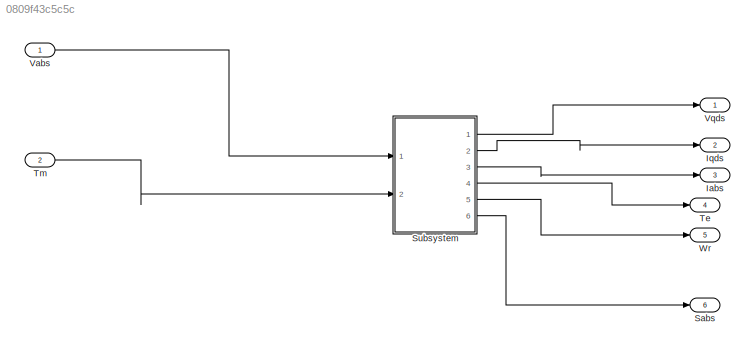
MODEL slx_0809f43c5c5c
KIND model
CONFIG AbsTol = auto
CONFIG EnableMultiTasking = off
CONFIG FixedStep = auto
CONFIG MaxStep = auto
CONFIG MinStep = auto
CONFIG RelTol = 1e-3
CONFIG SampleTimeConstraint = Unconstrained
CONFIG SolverName = VariableStepAuto
CONFIG StartTime = 0.0
CONFIG StopTime = 10.0
BLOCK [Outport] Iabs
  Port = 3
BLOCK [Outport] Iqds
  Port = 2
BLOCK [Outport] Sabs
  Port = 6
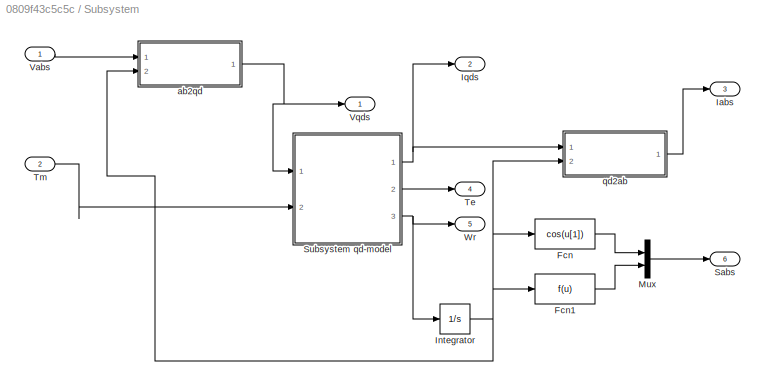
BLOCK [SubSystem] Subsystem
  Ports = [2, 6]
  RequestExecContextInheritance = off
BLOCK [Fcn] Subsystem/Fcn
  Expr = cos(u[1])
BLOCK [Fcn] Subsystem/Fcn1
BLOCK [Outport] Subsystem/Iabs
  Port = 3
BLOCK [Integrator] Subsystem/Integrator
  Ports = [1, 1]
BLOCK [Outport] Subsystem/Iqds
  Port = 2
BLOCK [Mux] Subsystem/Mux
  DisplayOption = bar
  Inputs = 2
  Ports = [2, 1]
BLOCK [Outport] Subsystem/Sabs
  Port = 6
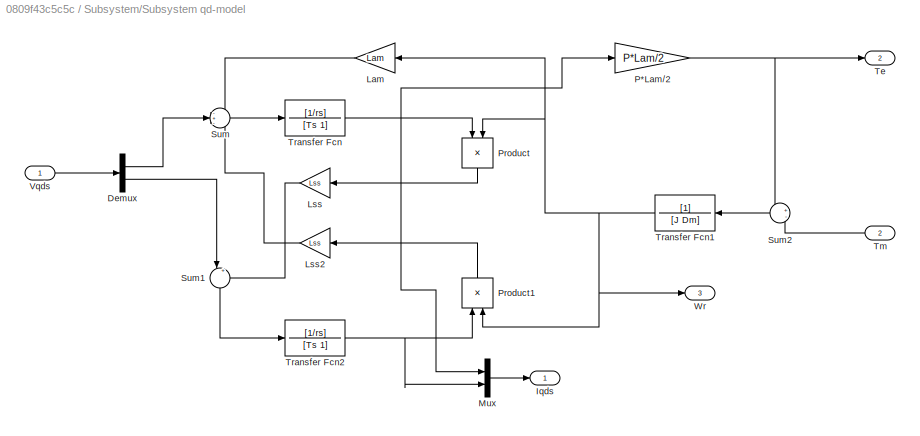
BLOCK [SubSystem] Subsystem/Subsystem qd-model
  Ports = [2, 3]
  RequestExecContextInheritance = off
BLOCK [Demux] Subsystem/Subsystem qd-model/Demux
  Outputs = 2
  Ports = [1, 2]
BLOCK [Outport] Subsystem/Subsystem qd-model/Iqds
BLOCK [Gain] Subsystem/Subsystem qd-model/Lam
  Gain = Lam
BLOCK [Gain] Subsystem/Subsystem qd-model/Lss
  Gain = Lss
BLOCK [Gain] Subsystem/Subsystem qd-model/Lss2
  Gain = Lss
BLOCK [Mux] Subsystem/Subsystem qd-model/Mux
  DisplayOption = bar
  Inputs = 2
  Ports = [2, 1]
BLOCK [Gain] Subsystem/Subsystem qd-model/P*Lam//2
  Gain = P*Lam/2
BLOCK [Product] Subsystem/Subsystem qd-model/Product
  NameLocation = left
  Ports = [2, 1]
BLOCK [Product] Subsystem/Subsystem qd-model/Product1
  NameLocation = right
  Ports = [2, 1]
BLOCK [Sum] Subsystem/Subsystem qd-model/Sum
  Inputs = -+-
  Ports = [3, 1]
BLOCK [Sum] Subsystem/Subsystem qd-model/Sum1
  Inputs = |++
  NameLocation = left
  Ports = [2, 1]
BLOCK [Sum] Subsystem/Subsystem qd-model/Sum2
  Inputs = +-
  Ports = [2, 1]
BLOCK [Outport] Subsystem/Subsystem qd-model/Te
  Port = 2
BLOCK [Inport] Subsystem/Subsystem qd-model/Tm
  Port = 2
BLOCK [TransferFcn] Subsystem/Subsystem qd-model/Transfer Fcn
  Denominator = [Ts 1]
  Numerator = [1/rs]
BLOCK [TransferFcn] Subsystem/Subsystem qd-model/Transfer Fcn1
  Denominator = [J Dm]
BLOCK [TransferFcn] Subsystem/Subsystem qd-model/Transfer Fcn2
  Denominator = [Ts 1]
  Numerator = [1/rs]
BLOCK [Inport] Subsystem/Subsystem qd-model/Vqds
BLOCK [Outport] Subsystem/Subsystem qd-model/Wr
  Port = 3
BLOCK [Outport] Subsystem/Te
  Port = 4
BLOCK [Inport] Subsystem/Tm
  Port = 2
BLOCK [Inport] Subsystem/Vabs
BLOCK [Outport] Subsystem/Vqds
BLOCK [Outport] Subsystem/Wr
  Port = 5
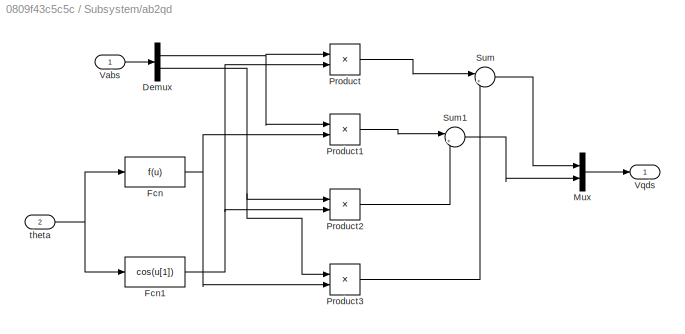
BLOCK [SubSystem] Subsystem/ab2qd
  Ports = [2, 1]
  RequestExecContextInheritance = off
BLOCK [Outport] Subsystem/ab2qd/ Vqds
BLOCK [Demux] Subsystem/ab2qd/Demux
  Outputs = 2
  Ports = [1, 2]
BLOCK [Fcn] Subsystem/ab2qd/Fcn
BLOCK [Fcn] Subsystem/ab2qd/Fcn1
  Expr = cos(u[1])
BLOCK [Mux] Subsystem/ab2qd/Mux
  DisplayOption = bar
  Inputs = 2
  Ports = [2, 1]
BLOCK [Product] Subsystem/ab2qd/Product
  Ports = [2, 1]
BLOCK [Product] Subsystem/ab2qd/Product1
  Ports = [2, 1]
BLOCK [Product] Subsystem/ab2qd/Product2
  Ports = [2, 1]
BLOCK [Product] Subsystem/ab2qd/Product3
  Ports = [2, 1]
BLOCK [Sum] Subsystem/ab2qd/Sum
  Inputs = |++
  Ports = [2, 1]
BLOCK [Sum] Subsystem/ab2qd/Sum1
  Inputs = |+-
  Ports = [2, 1]
BLOCK [Inport] Subsystem/ab2qd/Vabs
BLOCK [Inport] Subsystem/ab2qd/theta
  Port = 2
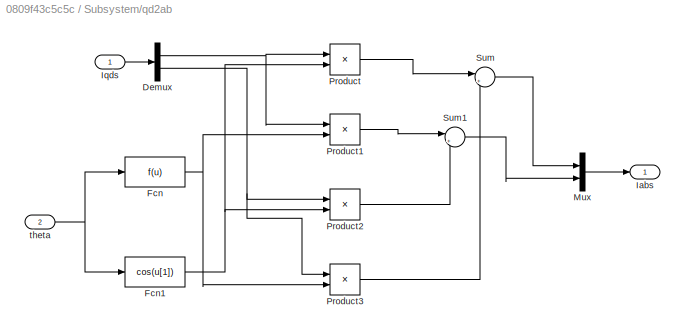
BLOCK [SubSystem] Subsystem/qd2ab
  Ports = [2, 1]
  RequestExecContextInheritance = off
BLOCK [Outport] Subsystem/qd2ab/ Iabs
BLOCK [Demux] Subsystem/qd2ab/Demux
  Outputs = 2
  Ports = [1, 2]
BLOCK [Fcn] Subsystem/qd2ab/Fcn
BLOCK [Fcn] Subsystem/qd2ab/Fcn1
  Expr = cos(u[1])
BLOCK [Inport] Subsystem/qd2ab/Iqds
BLOCK [Mux] Subsystem/qd2ab/Mux
  DisplayOption = bar
  Inputs = 2
  Ports = [2, 1]
BLOCK [Product] Subsystem/qd2ab/Product
  Ports = [2, 1]
BLOCK [Product] Subsystem/qd2ab/Product1
  Ports = [2, 1]
BLOCK [Product] Subsystem/qd2ab/Product2
  Ports = [2, 1]
BLOCK [Product] Subsystem/qd2ab/Product3
  Ports = [2, 1]
BLOCK [Sum] Subsystem/qd2ab/Sum
  Inputs = |++
  Ports = [2, 1]
BLOCK [Sum] Subsystem/qd2ab/Sum1
  Inputs = |+-
  Ports = [2, 1]
BLOCK [Inport] Subsystem/qd2ab/theta
  Port = 2
BLOCK [Outport] Te
  Port = 4
BLOCK [Inport] Tm
  Port = 2
BLOCK [Inport] Vabs
BLOCK [Outport] Vqds
BLOCK [Outport] Wr
  Port = 5
LINE Subsystem/Fcn1:1 -> Subsystem/Mux:2
LINE Subsystem/Fcn:1 -> Subsystem/Mux:1
NET Subsystem/Integrator:1 -> Subsystem/Fcn1:1, Subsystem/Fcn:1, Subsystem/ab2qd:2, Subsystem/qd2ab:2
LINE Subsystem/Mux:1 -> Subsystem/Sabs:1
LINE Subsystem/Subsystem qd-model/Demux:1 -> Subsystem/Subsystem qd-model/Sum:2
LINE Subsystem/Subsystem qd-model/Demux:2 -> Subsystem/Subsystem qd-model/Sum1:1
LINE Subsystem/Subsystem qd-model/Lam:1 -> Subsystem/Subsystem qd-model/Sum:1
LINE Subsystem/Subsystem qd-model/Lss2:1 -> Subsystem/Subsystem qd-model/Sum:3
LINE Subsystem/Subsystem qd-model/Lss:1 -> Subsystem/Subsystem qd-model/Sum1:2
LINE Subsystem/Subsystem qd-model/Mux:1 -> Subsystem/Subsystem qd-model/Iqds:1
NET Subsystem/Subsystem qd-model/P*Lam//2:1 -> Subsystem/Subsystem qd-model/Sum2:1, Subsystem/Subsystem qd-model/Te:1
LINE Subsystem/Subsystem qd-model/Product1:1 -> Subsystem/Subsystem qd-model/Lss2:1
LINE Subsystem/Subsystem qd-model/Product:1 -> Subsystem/Subsystem qd-model/Lss:1
LINE Subsystem/Subsystem qd-model/Sum1:1 -> Subsystem/Subsystem qd-model/Transfer Fcn2:1
LINE Subsystem/Subsystem qd-model/Sum2:1 -> Subsystem/Subsystem qd-model/Transfer Fcn1:1
LINE Subsystem/Subsystem qd-model/Sum:1 -> Subsystem/Subsystem qd-model/Transfer Fcn:1
LINE Subsystem/Subsystem qd-model/Tm:1 -> Subsystem/Subsystem qd-model/Sum2:2
NET Subsystem/Subsystem qd-model/Transfer Fcn1:1 -> Subsystem/Subsystem qd-model/Lam:1, Subsystem/Subsystem qd-model/Product1:2, Subsystem/Subsystem qd-model/Product:2, Subsystem/Subsystem qd-model/Wr:1
NET Subsystem/Subsystem qd-model/Transfer Fcn2:1 -> Subsystem/Subsystem qd-model/Mux:2, Subsystem/Subsystem qd-model/Product1:1
NET Subsystem/Subsystem qd-model/Transfer Fcn:1 -> Subsystem/Subsystem qd-model/Mux:1, Subsystem/Subsystem qd-model/P*Lam//2:1, Subsystem/Subsystem qd-model/Product:1
LINE Subsystem/Subsystem qd-model/Vqds:1 -> Subsystem/Subsystem qd-model/Demux:1
NET Subsystem/Subsystem qd-model:1 -> Subsystem/Iqds:1, Subsystem/qd2ab:1
LINE Subsystem/Subsystem qd-model:2 -> Subsystem/Te:1
NET Subsystem/Subsystem qd-model:3 -> Subsystem/Integrator:1, Subsystem/Wr:1
LINE Subsystem/Tm:1 -> Subsystem/Subsystem qd-model:2
LINE Subsystem/Vabs:1 -> Subsystem/ab2qd:1
NET Subsystem/ab2qd/Demux:1 -> Subsystem/ab2qd/Product1:1, Subsystem/ab2qd/Product:1
NET Subsystem/ab2qd/Demux:2 -> Subsystem/ab2qd/Product2:1, Subsystem/ab2qd/Product3:1
NET Subsystem/ab2qd/Fcn1:1 -> Subsystem/ab2qd/Product2:2, Subsystem/ab2qd/Product:2
NET Subsystem/ab2qd/Fcn:1 -> Subsystem/ab2qd/Product1:2, Subsystem/ab2qd/Product3:2
LINE Subsystem/ab2qd/Mux:1 -> Subsystem/ab2qd/ Vqds:1
LINE Subsystem/ab2qd/Product1:1 -> Subsystem/ab2qd/Sum1:1
LINE Subsystem/ab2qd/Product2:1 -> Subsystem/ab2qd/Sum1:2
LINE Subsystem/ab2qd/Product3:1 -> Subsystem/ab2qd/Sum:2
LINE Subsystem/ab2qd/Product:1 -> Subsystem/ab2qd/Sum:1
LINE Subsystem/ab2qd/Sum1:1 -> Subsystem/ab2qd/Mux:2
LINE Subsystem/ab2qd/Sum:1 -> Subsystem/ab2qd/Mux:1
LINE Subsystem/ab2qd/Vabs:1 -> Subsystem/ab2qd/Demux:1
NET Subsystem/ab2qd/theta:1 -> Subsystem/ab2qd/Fcn1:1, Subsystem/ab2qd/Fcn:1
NET Subsystem/ab2qd:1 -> Subsystem/Subsystem qd-model:1, Subsystem/Vqds:1
NET Subsystem/qd2ab/Demux:1 -> Subsystem/qd2ab/Product1:1, Subsystem/qd2ab/Product:1
NET Subsystem/qd2ab/Demux:2 -> Subsystem/qd2ab/Product2:1, Subsystem/qd2ab/Product3:1
NET Subsystem/qd2ab/Fcn1:1 -> Subsystem/qd2ab/Product2:2, Subsystem/qd2ab/Product:2
NET Subsystem/qd2ab/Fcn:1 -> Subsystem/qd2ab/Product1:2, Subsystem/qd2ab/Product3:2
LINE Subsystem/qd2ab/Iqds:1 -> Subsystem/qd2ab/Demux:1
LINE Subsystem/qd2ab/Mux:1 -> Subsystem/qd2ab/ Iabs:1
LINE Subsystem/qd2ab/Product1:1 -> Subsystem/qd2ab/Sum1:1
LINE Subsystem/qd2ab/Product2:1 -> Subsystem/qd2ab/Sum1:2
LINE Subsystem/qd2ab/Product3:1 -> Subsystem/qd2ab/Sum:2
LINE Subsystem/qd2ab/Product:1 -> Subsystem/qd2ab/Sum:1
LINE Subsystem/qd2ab/Sum1:1 -> Subsystem/qd2ab/Mux:2
LINE Subsystem/qd2ab/Sum:1 -> Subsystem/qd2ab/Mux:1
NET Subsystem/qd2ab/theta:1 -> Subsystem/qd2ab/Fcn1:1, Subsystem/qd2ab/Fcn:1
LINE Subsystem/qd2ab:1 -> Subsystem/Iabs:1
LINE Subsystem:1 -> Vqds:1
LINE Subsystem:2 -> Iqds:1
LINE Subsystem:3 -> Iabs:1
LINE Subsystem:4 -> Te:1
LINE Subsystem:5 -> Wr:1
LINE Subsystem:6 -> Sabs:1
LINE Tm:1 -> Subsystem:2
LINE Vabs:1 -> Subsystem:1
note: NET lines group one-source signal fan-out (src -> all destinations, sorted); 1:1 wires keep LINE
